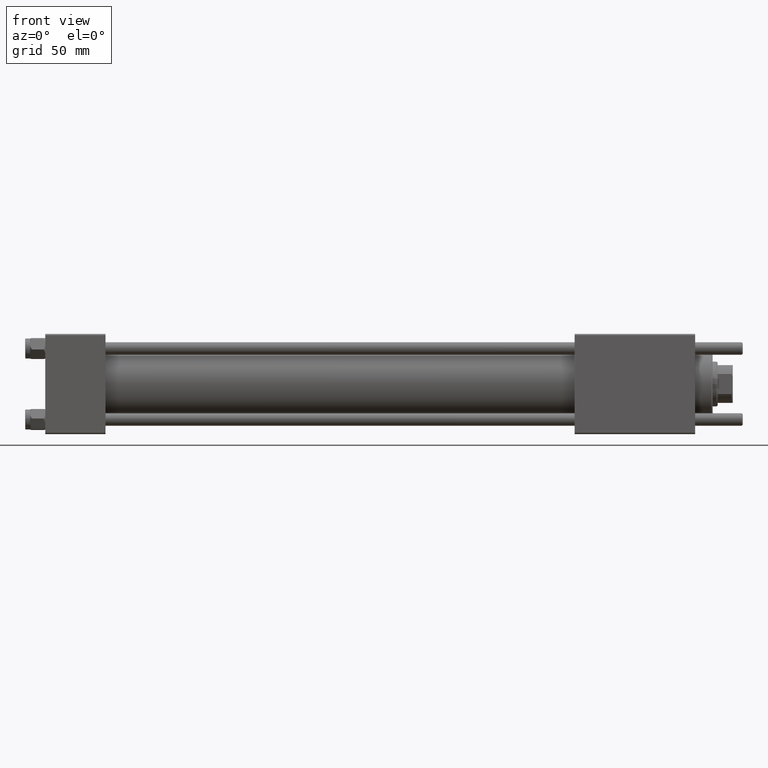
[diagram: clean part render]
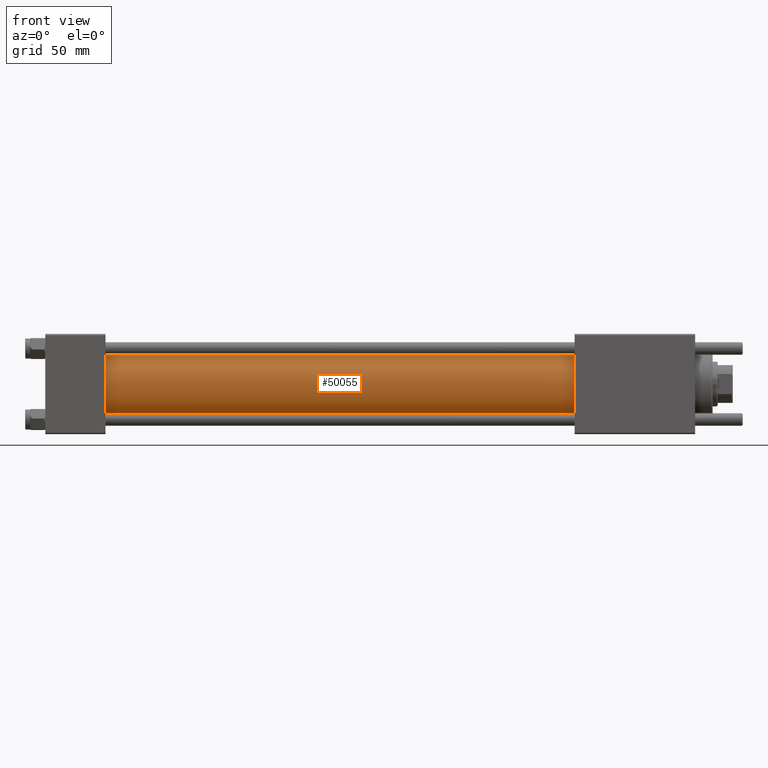
[diagram: same view with one face highlighted and labeled with its STEP entity id]
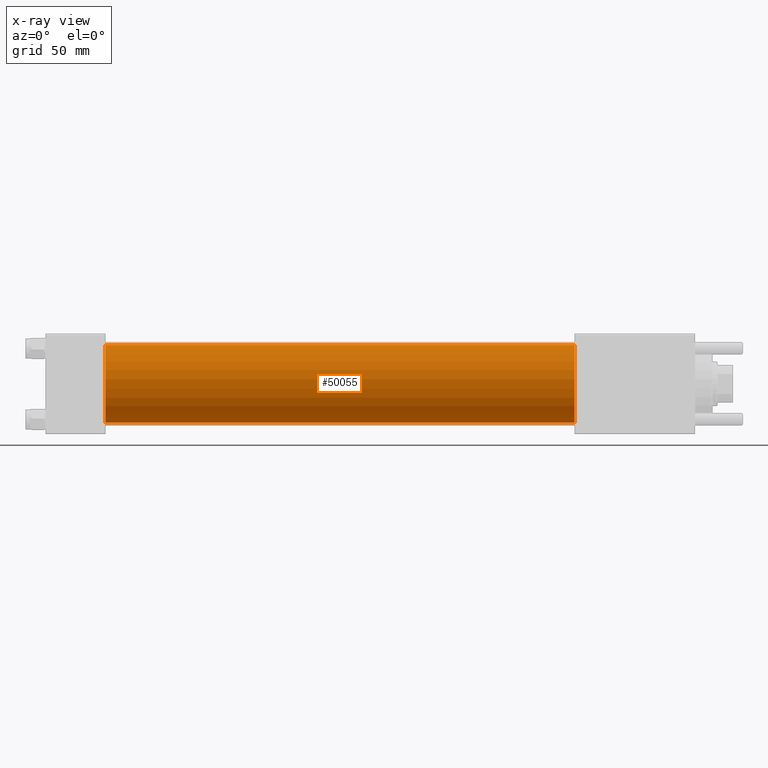
[diagram: x-ray of the same camera — body ghosted, the highlighted face saturated]
A machine part, front view. The second image highlights one B-rep face of the part: STEP entity #50055.
The next image is the same camera in x-ray: the body ghosted, the highlighted face saturated — about 0% of this face is hidden behind the body in this view.
In plain terms, the highlighted cylindrical surface (partial cylindrical patch) has radius 15.5 mm, axis along (-1, -0, -0).
Its self-contained STEP definition (entity closure, byte-faithful):
#1998 = EDGE_CURVE ( 'NONE', #8813, #30708, #2832, .T. ) ;
#2573 = CARTESIAN_POINT ( 'NONE',  ( 211.0000000000000000, -2.602085213965210642E-15, 0.000000000000000000 ) ) ;
#2832 = LINE ( 'NONE', #41803, #7203 ) ;
#3704 = CIRCLE ( 'NONE', #33900, 15.50000000000000000 ) ;
#5481 = CARTESIAN_POINT ( 'NONE',  ( 23.99999999999999289, -2.602085213965210642E-15, 0.000000000000000000 ) ) ;
#7203 = VECTOR ( 'NONE', #24297, 1000.000000000000000 ) ;
#7253 = CARTESIAN_POINT ( 'NONE',  ( 23.99999999999999289, -7.038826752868131828E-16, -15.50000000000000000 ) ) ;
#7956 = ORIENTED_EDGE ( 'NONE', *, *, #10817, .F. ) ;
#8733 = CARTESIAN_POINT ( 'NONE',  ( 211.0000000000000000, -7.038826752868131828E-16, -15.50000000000000000 ) ) ;
#8810 = DIRECTION ( 'NONE',  ( -1.000000000000000000, -0.000000000000000000, -0.000000000000000000 ) ) ;
#8813 = VERTEX_POINT ( 'NONE', #33570 ) ;
#10117 = EDGE_CURVE ( 'NONE', #14650, #14861, #26301, .T. ) ;
#10817 = EDGE_CURVE ( 'NONE', #8813, #14650, #16525, .T. ) ;
#12857 = CARTESIAN_POINT ( 'NONE',  ( 211.0000000000000000, -7.038826752868131828E-16, -15.50000000000000000 ) ) ;
#13380 = CYLINDRICAL_SURFACE ( 'NONE', #22421, 15.50000000000000000 ) ;
#13786 = VECTOR ( 'NONE', #39805, 1000.000000000000000 ) ;
#14650 = VERTEX_POINT ( 'NONE', #8733 ) ;
#14861 = VERTEX_POINT ( 'NONE', #7253 ) ;
#16525 = CIRCLE ( 'NONE', #29350, 15.50000000000000000 ) ;
#20613 = DIRECTION ( 'NONE',  ( 0.000000000000000000, 0.000000000000000000, 1.000000000000000000 ) ) ;
#22421 = AXIS2_PLACEMENT_3D ( 'NONE', #2573, #8810, #20613 ) ;
#24297 = DIRECTION ( 'NONE',  ( -1.000000000000000000, -0.000000000000000000, -0.000000000000000000 ) ) ;
#24537 = ORIENTED_EDGE ( 'NONE', *, *, #1998, .T. ) ;
#24607 = ORIENTED_EDGE ( 'NONE', *, *, #32149, .T. ) ;
#26301 = LINE ( 'NONE', #12857, #13786 ) ;
#27034 = ORIENTED_EDGE ( 'NONE', *, *, #10117, .F. ) ;
#29350 = AXIS2_PLACEMENT_3D ( 'NONE', #46990, #50720, #41825 ) ;
#30708 = VERTEX_POINT ( 'NONE', #49433 ) ;
#32149 = EDGE_CURVE ( 'NONE', #30708, #14861, #3704, .T. ) ;
#33213 = EDGE_LOOP ( 'NONE', ( #27034, #7956, #24537, #24607 ) ) ;
#33570 = CARTESIAN_POINT ( 'NONE',  ( 211.0000000000000000, -2.602085213965210642E-15, 15.50000000000000000 ) ) ;
#33900 = AXIS2_PLACEMENT_3D ( 'NONE', #5481, #48765, #44457 ) ;
#39805 = DIRECTION ( 'NONE',  ( -1.000000000000000000, -0.000000000000000000, -0.000000000000000000 ) ) ;
#41803 = CARTESIAN_POINT ( 'NONE',  ( 211.0000000000000000, -2.602085213965210642E-15, 15.50000000000000000 ) ) ;
#41825 = DIRECTION ( 'NONE',  ( 0.000000000000000000, 0.000000000000000000, -1.000000000000000000 ) ) ;
#44457 = DIRECTION ( 'NONE',  ( 0.000000000000000000, 0.000000000000000000, 1.000000000000000000 ) ) ;
#46990 = CARTESIAN_POINT ( 'NONE',  ( 211.0000000000000000, -2.602085213965210642E-15, 0.000000000000000000 ) ) ;
#48765 = DIRECTION ( 'NONE',  ( 1.000000000000000000, 0.000000000000000000, 0.000000000000000000 ) ) ;
#49433 = CARTESIAN_POINT ( 'NONE',  ( 23.99999999999999289, -2.602085213965210642E-15, 15.50000000000000000 ) ) ;
#50055 = ADVANCED_FACE ( 'NONE', ( #52368 ), #13380, .T. ) ;
#50720 = DIRECTION ( 'NONE',  ( 1.000000000000000000, 0.000000000000000000, 0.000000000000000000 ) ) ;
#52368 = FACE_OUTER_BOUND ( 'NONE', #33213, .T. ) ;